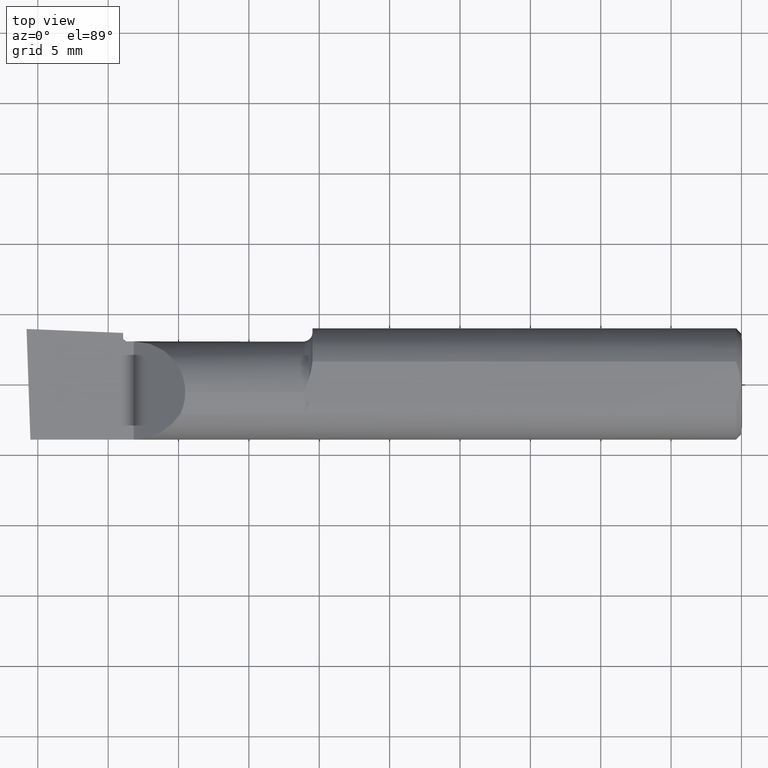
[diagram: clean part render]
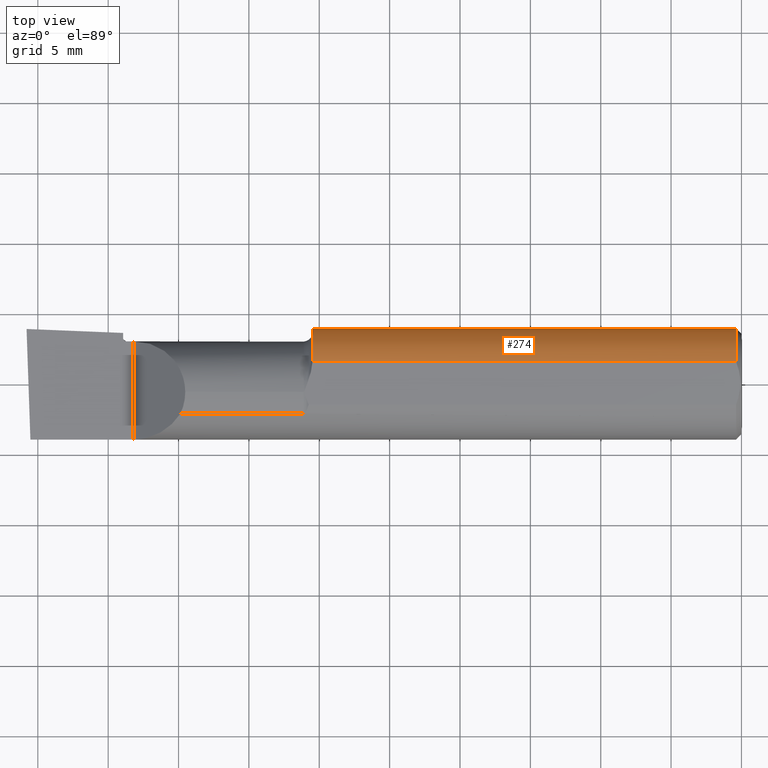
[diagram: same view with one face highlighted and labeled with its STEP entity id]
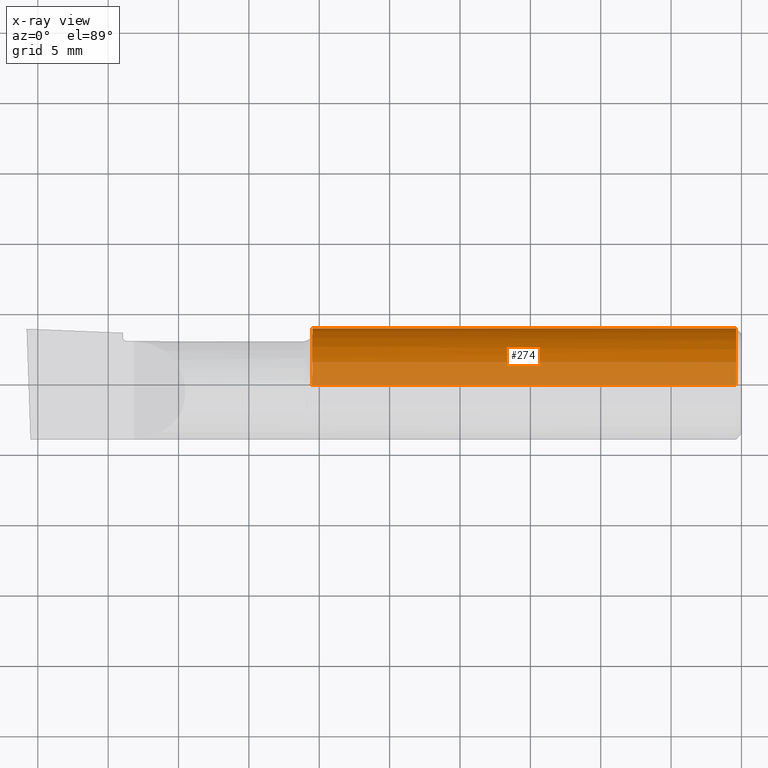
[diagram: x-ray of the same camera — body ghosted, the highlighted face saturated]
A machine part, top view. The second image highlights one B-rep face of the part: STEP entity #274.
The next image is the same camera in x-ray: the body ghosted, the highlighted face saturated — about 41% of this face is hidden behind the body in this view.
In plain terms, the highlighted cylindrical surface (partial cylindrical patch) has radius 3.9649 mm, axis along (1, -0, -0).
Its self-contained STEP definition (entity closure, byte-faithful):
#46 = VERTEX_POINT ( 'NONE', #457 ) ;
#50 = DIRECTION ( 'NONE',  ( 0.000000000000000000, 0.000000000000000000, 1.000000000000000000 ) ) ;
#58 = CARTESIAN_POINT ( 'NONE',  ( -1.201996614417089937, 0.006087683071544712846, -0.1560999999999811150 ) ) ;
#63 = EDGE_CURVE ( 'NONE', #660, #500, #222, .T. ) ;
#96 = FACE_OUTER_BOUND ( 'NONE', #460, .T. ) ;
#100 = DIRECTION ( 'NONE',  ( 0.000000000000000000, 0.000000000000000000, 1.000000000000000000 ) ) ;
#121 = EDGE_CURVE ( 'NONE', #532, #154, #530, .T. ) ;
#122 = CARTESIAN_POINT ( 'NONE',  ( -1.199999999999999956, 0.07070000000000016549, -0.1391715488165593539 ) ) ;
#138 = EDGE_CURVE ( 'NONE', #46, #410, #398, .T. ) ;
#154 = VERTEX_POINT ( 'NONE', #641 ) ;
#178 = DIRECTION ( 'NONE',  ( -1.000000000000000000, 0.000000000000000000, 0.000000000000000000 ) ) ;
#187 = CARTESIAN_POINT ( 'NONE',  ( -1.199999999999999956, 0.06720526509779117807, 0.1409468955716051686 ) ) ;
#205 = CYLINDRICAL_SURFACE ( 'NONE', #317, 0.1560999999999999888 ) ;
#221 = CARTESIAN_POINT ( 'NONE',  ( -1.199999999999999956, 0.06524677665729021470, -0.1419418197060338949 ) ) ;
#222 = CIRCLE ( 'NONE', #511, 0.1560999999999999888 ) ;
#274 = ADVANCED_FACE ( 'NONE', ( #96 ), #205, .T. ) ;
#278 = AXIS2_PLACEMENT_3D ( 'NONE', #560, #390, #100 ) ;
#281 = CARTESIAN_POINT ( 'NONE',  ( -1.200977043369841457, 0.02442086657637503738, -0.1542995754677715381 ) ) ;
#310 = ORIENTED_EDGE ( 'NONE', *, *, #642, .T. ) ;
#312 = LINE ( 'NONE', #556, #336 ) ;
#316 = CARTESIAN_POINT ( 'NONE',  ( -1.200050504025077291, 0.06001999666777733250, 0.1440999999999999504 ) ) ;
#317 = AXIS2_PLACEMENT_3D ( 'NONE', #663, #497, #715 ) ;
#319 = ORIENTED_EDGE ( 'NONE', *, *, #408, .F. ) ;
#336 = VECTOR ( 'NONE', #723, 39.37007874015748143 ) ;
#341 = CARTESIAN_POINT ( 'NONE',  ( -1.202458313762935216, 4.839806556636975714E-13, -0.1560999999999999888 ) ) ;
#350 = CARTESIAN_POINT ( 'NONE',  ( -2.000000000000000000, 0.06001999666777736719, 0.1440999999999999504 ) ) ;
#366 = CARTESIAN_POINT ( 'NONE',  ( -1.200050504025077291, 0.06001999666777733250, 0.1440999999999999504 ) ) ;
#390 = DIRECTION ( 'NONE',  ( 1.000000000000000000, -0.000000000000000000, -0.000000000000000000 ) ) ;
#398 = B_SPLINE_CURVE_WITH_KNOTS ( 'NONE', 3,
 ( #705, #187, #420, #366 ),
 .UNSPECIFIED., .F., .F.,
 ( 4, 4 ),
 ( 0.002773882331925835425, 0.003069179409190571188 ),
 .UNSPECIFIED. ) ;
#400 = CARTESIAN_POINT ( 'NONE',  ( -1.201609734521864148, 0.01225372253022622218, -0.1557388326591280514 ) ) ;
#407 = CARTESIAN_POINT ( 'NONE',  ( -1.200214390677044163, 0.04807667021748289471, -0.1486381104007177822 ) ) ;
#408 = EDGE_CURVE ( 'NONE', #532, #500, #312, .T. ) ;
#409 = LINE ( 'NONE', #350, #546 ) ;
#410 = VERTEX_POINT ( 'NONE', #316 ) ;
#411 = EDGE_CURVE ( 'NONE', #154, #46, #595, .T. ) ;
#413 = DIRECTION ( 'NONE',  ( 1.000000000000000000, -0.000000000000000000, -0.000000000000000000 ) ) ;
#420 = CARTESIAN_POINT ( 'NONE',  ( -1.200016018626790748, 0.06364538733738611676, 0.1425899657466627724 ) ) ;
#450 = CARTESIAN_POINT ( 'NONE',  ( -1.202458313762935216, 4.839806556636975714E-13, -0.1560999999999999888 ) ) ;
#457 = CARTESIAN_POINT ( 'NONE',  ( -1.199999999999999956, 0.07070000000000016549, 0.1391715488165593539 ) ) ;
#460 = EDGE_LOOP ( 'NONE', ( #319, #598, #502, #492, #310, #648 ) ) ;
#492 = ORIENTED_EDGE ( 'NONE', *, *, #138, .T. ) ;
#497 = DIRECTION ( 'NONE',  ( 1.000000000000000000, -0.000000000000000000, -0.000000000000000000 ) ) ;
#500 = VERTEX_POINT ( 'NONE', #741 ) ;
#502 = ORIENTED_EDGE ( 'NONE', *, *, #411, .T. ) ;
#505 = CARTESIAN_POINT ( 'NONE',  ( -1.200348850910508913, 0.04224677410306582059, -0.1503974671975661925 ) ) ;
#511 = AXIS2_PLACEMENT_3D ( 'NONE', #565, #178, #50 ) ;
#530 = B_SPLINE_CURVE_WITH_KNOTS ( 'NONE', 3,
 ( #341, #58, #400, #281, #685, #505, #407, #631, #221, #122 ),
 .UNSPECIFIED., .F., .F.,
 ( 4, 2, 2, 2, 4 ),
 ( 0.002475127250578799606, 0.002949952465897969119, 0.003424777681217138197, 0.003899602896536307275, 0.004374428111855476788 ),
 .UNSPECIFIED. ) ;
#532 = VERTEX_POINT ( 'NONE', #450 ) ;
#546 = VECTOR ( 'NONE', #413, 39.37007874015748143 ) ;
#556 = CARTESIAN_POINT ( 'NONE',  ( -2.000000000000000000, 0.000000000000000000, -0.1560999999999999888 ) ) ;
#560 = CARTESIAN_POINT ( 'NONE',  ( -1.199999999999999956, 0.000000000000000000, 0.000000000000000000 ) ) ;
#565 = CARTESIAN_POINT ( 'NONE',  ( -0.01500000000000024925, 0.000000000000000000, 0.000000000000000000 ) ) ;
#590 = CARTESIAN_POINT ( 'NONE',  ( -0.01500000000000023884, 0.06001999666777732556, 0.1440999999999999504 ) ) ;
#595 = CIRCLE ( 'NONE', #278, 0.1560999999999999888 ) ;
#598 = ORIENTED_EDGE ( 'NONE', *, *, #121, .T. ) ;
#631 = CARTESIAN_POINT ( 'NONE',  ( -1.200039703990471995, 0.05956456076033812830, -0.1444185486152127496 ) ) ;
#641 = CARTESIAN_POINT ( 'NONE',  ( -1.199999999999999956, 0.07070000000000016549, -0.1391715488165593539 ) ) ;
#642 = EDGE_CURVE ( 'NONE', #410, #660, #409, .T. ) ;
#648 = ORIENTED_EDGE ( 'NONE', *, *, #63, .T. ) ;
#660 = VERTEX_POINT ( 'NONE', #590 ) ;
#663 = CARTESIAN_POINT ( 'NONE',  ( -2.000000000000000000, 0.000000000000000000, 0.000000000000000000 ) ) ;
#685 = CARTESIAN_POINT ( 'NONE',  ( -1.200730260234562863, 0.03041887409375952991, -0.1532281963622441900 ) ) ;
#705 = CARTESIAN_POINT ( 'NONE',  ( -1.199999999999999956, 0.07070000000000016549, 0.1391715488165593539 ) ) ;
#715 = DIRECTION ( 'NONE',  ( 0.000000000000000000, 0.000000000000000000, -1.000000000000000000 ) ) ;
#723 = DIRECTION ( 'NONE',  ( 1.000000000000000000, -0.000000000000000000, -0.000000000000000000 ) ) ;
#741 = CARTESIAN_POINT ( 'NONE',  ( -0.01500000000000024925, 0.000000000000000000, -0.1560999999999999888 ) ) ;